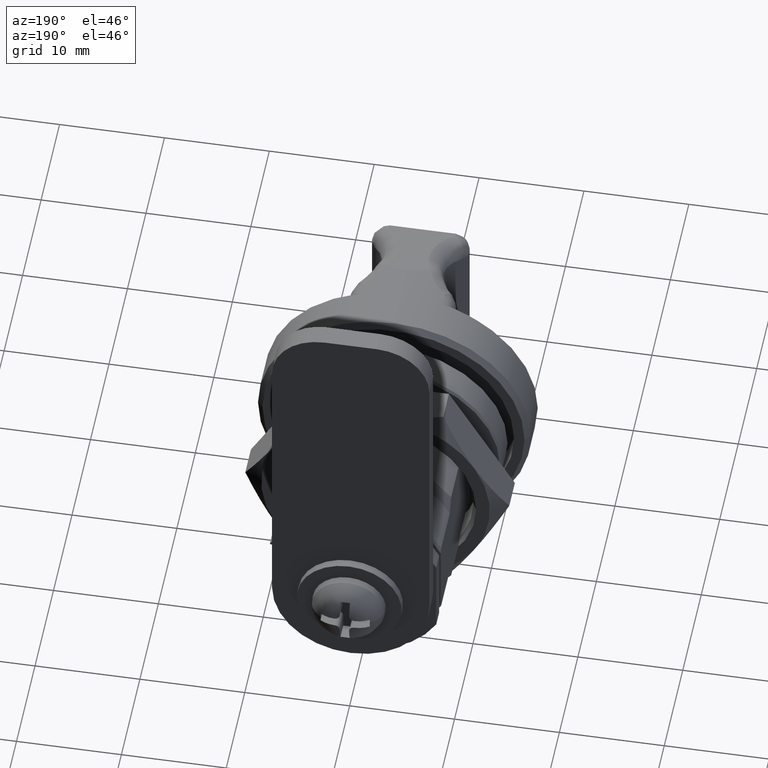
[diagram: clean part render]
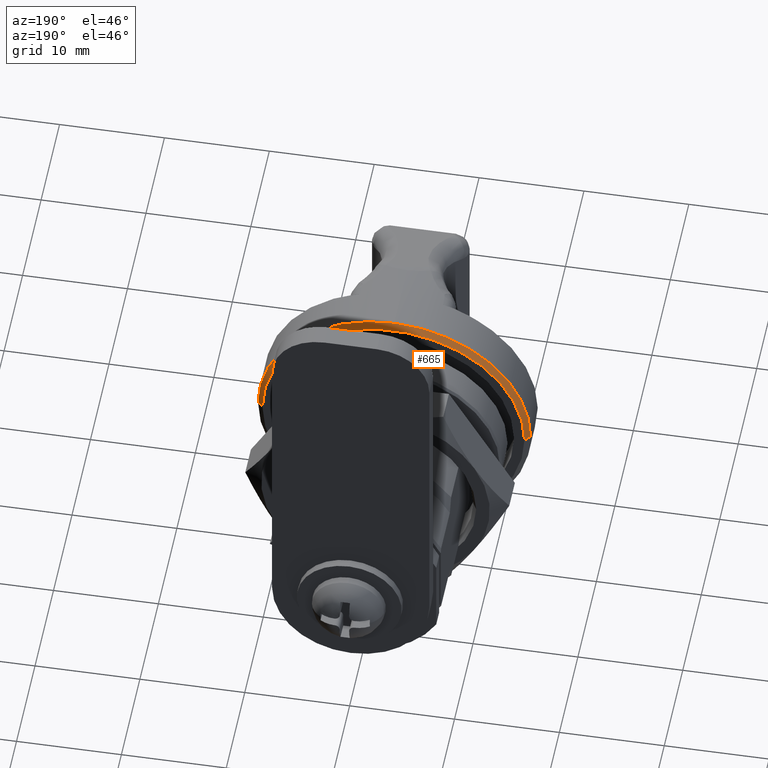
[diagram: same view with one face highlighted and labeled with its STEP entity id]
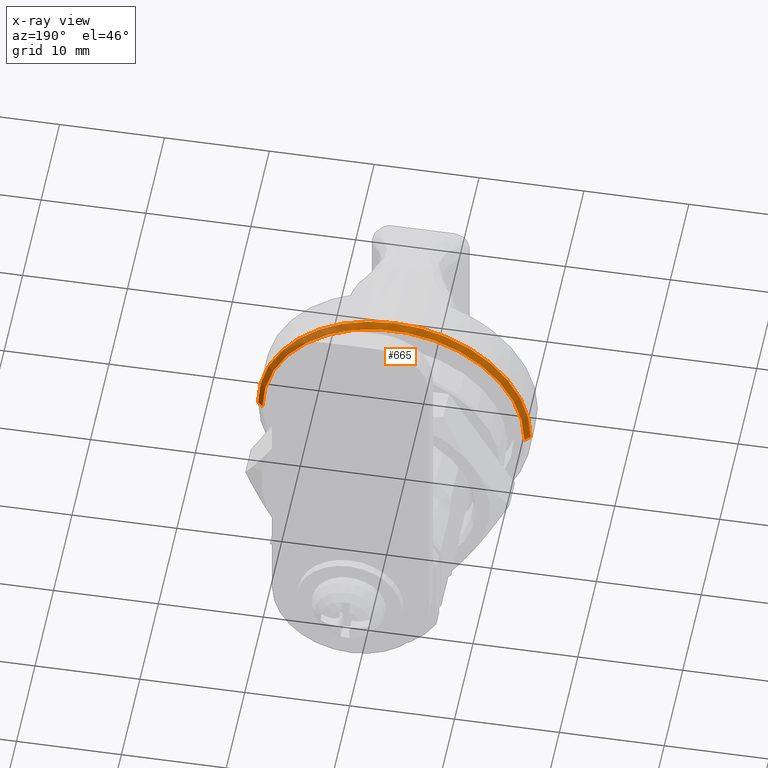
[diagram: x-ray of the same camera — body ghosted, the highlighted face saturated]
A machine part, auxiliary view. The second image highlights one B-rep face of the part: STEP entity #665.
The next image is the same camera in x-ray: the body ghosted, the highlighted face saturated — about 22% of this face is hidden behind the body in this view.
In plain terms, the highlighted conical surface has half-angle 45 deg.
Its self-contained STEP definition (entity closure, byte-faithful):
#40 = CARTESIAN_POINT ( 'NONE',  ( -4.199999999982322800, -13.00000000001770100, 4.643133002784845100E-015 ) ) ;
#641 = DIRECTION ( 'NONE',  ( 1.000000000000000000, 6.672013369132493600E-017, 6.672013369132491100E-017 ) ) ;
#647 = VECTOR ( 'NONE', #6063, 1000.000000000000000 ) ;
#665 = ADVANCED_FACE ( 'NONE', ( #3683 ), #6891, .T. ) ;
#1075 = ORIENTED_EDGE ( 'NONE', *, *, #9552, .F. ) ;
#1198 = VERTEX_POINT ( 'NONE', #40 ) ;
#1465 = CIRCLE ( 'NONE', #3209, 12.50000000001700300 ) ;
#1561 = CARTESIAN_POINT ( 'NONE',  ( -991.1999999999999300, -4.158896455073662200E-013, 3.571640771377812400E-013 ) ) ;
#1901 = DIRECTION ( 'NONE',  ( -1.000000000000000000, -4.158896455073662000E-016, 3.571640771377812300E-016 ) ) ;
#2149 = CARTESIAN_POINT ( 'NONE',  ( -4.199999999982322800, 13.00000000001767800, 6.235173841678565100E-015 ) ) ;
#2199 = EDGE_CURVE ( 'NONE', #6604, #1198, #9588, .T. ) ;
#2410 = LINE ( 'NONE', #4359, #647 ) ;
#2643 = CARTESIAN_POINT ( 'NONE',  ( 8.800000000000000700, 0.0000000000000000000, 0.0000000000000000000 ) ) ;
#2723 = AXIS2_PLACEMENT_3D ( 'NONE', #5742, #641, #6611 ) ;
#2856 = CARTESIAN_POINT ( 'NONE',  ( -3.699999999982991100, -12.50000000001700900, 4.464550964216192700E-015 ) ) ;
#2867 = DIRECTION ( 'NONE',  ( 1.000000000000000000, 4.158896455073662000E-016, -3.571640771377812300E-016 ) ) ;
#3112 = ORIENTED_EDGE ( 'NONE', *, *, #3406, .T. ) ;
#3209 = AXIS2_PLACEMENT_3D ( 'NONE', #7978, #2867, #8836 ) ;
#3406 = EDGE_CURVE ( 'NONE', #6963, #5893, #9213, .T. ) ;
#3647 = VERTEX_POINT ( 'NONE', #2856 ) ;
#3683 = FACE_OUTER_BOUND ( 'NONE', #6107, .T. ) ;
#3719 = ORIENTED_EDGE ( 'NONE', *, *, #7105, .F. ) ;
#4359 = CARTESIAN_POINT ( 'NONE',  ( 8.800000000000000700, 0.0000000000000000000, 0.0000000000000000000 ) ) ;
#4622 = CIRCLE ( 'NONE', #2723, 13.00000000001815300 ) ;
#4976 = CARTESIAN_POINT ( 'NONE',  ( -4.199999999982324500, -3.326764314864607900E-015, 2.061392367156021700E-015 ) ) ;
#5306 = DIRECTION ( 'NONE',  ( 4.440892098488544800E-016, -1.000000000000000000, 0.0000000000000000000 ) ) ;
#5717 = AXIS2_PLACEMENT_3D ( 'NONE', #1561, #1901, #5306 ) ;
#5718 = AXIS2_PLACEMENT_3D ( 'NONE', #4976, #10960, #5832 ) ;
#5742 = CARTESIAN_POINT ( 'NONE',  ( -4.199999999982324500, -3.326764314864607900E-015, 2.061392367156021700E-015 ) ) ;
#5832 = DIRECTION ( 'NONE',  ( -6.672013369132249500E-017, 1.000000000000000000, 0.0000000000000000000 ) ) ;
#5893 = VERTEX_POINT ( 'NONE', #2149 ) ;
#6063 = DIRECTION ( 'NONE',  ( -0.7071067811855853400, -0.7071067811875096900, 2.525531409400167200E-016 ) ) ;
#6107 = EDGE_LOOP ( 'NONE', ( #1075, #3112, #8313, #10291, #3719 ) ) ;
#6604 = VERTEX_POINT ( 'NONE', #8636 ) ;
#6611 = DIRECTION ( 'NONE',  ( -6.672013369132249500E-017, 1.000000000000000000, 0.0000000000000000000 ) ) ;
#6891 = CONICAL_SURFACE ( 'NONE', #5717, 1000.000000002720500, 0.7853981633988085200 ) ;
#6925 = VECTOR ( 'NONE', #8604, 999.9999999999998900 ) ;
#6963 = VERTEX_POINT ( 'NONE', #8520 ) ;
#7105 = EDGE_CURVE ( 'NONE', #3647, #1198, #2410, .T. ) ;
#7769 = EDGE_CURVE ( 'NONE', #5893, #6604, #4622, .T. ) ;
#7978 = CARTESIAN_POINT ( 'NONE',  ( -3.699999999982996400, -5.198620568835006200E-015, 4.464550964216192700E-015 ) ) ;
#8313 = ORIENTED_EDGE ( 'NONE', *, *, #7769, .T. ) ;
#8520 = CARTESIAN_POINT ( 'NONE',  ( -3.699999999983001800, 12.50000000001699800, 6.115266652415631200E-015 ) ) ;
#8604 = DIRECTION ( 'NONE',  ( -0.7071067811855861200, 0.7071067811875090300, 3.391487465636838600E-016 ) ) ;
#8636 = CARTESIAN_POINT ( 'NONE',  ( -4.199999999982325400, 1.592040838898428100E-015, 13.00000000001815400 ) ) ;
#8836 = DIRECTION ( 'NONE',  ( 4.163336342338674000E-016, -1.000000000000000000, 0.0000000000000000000 ) ) ;
#9213 = LINE ( 'NONE', #2643, #6925 ) ;
#9552 = EDGE_CURVE ( 'NONE', #6963, #3647, #1465, .T. ) ;
#9588 = CIRCLE ( 'NONE', #5718, 13.00000000001815300 ) ;
#10291 = ORIENTED_EDGE ( 'NONE', *, *, #2199, .T. ) ;
#10960 = DIRECTION ( 'NONE',  ( 1.000000000000000000, 6.672013369132493600E-017, 6.672013369132491100E-017 ) ) ;